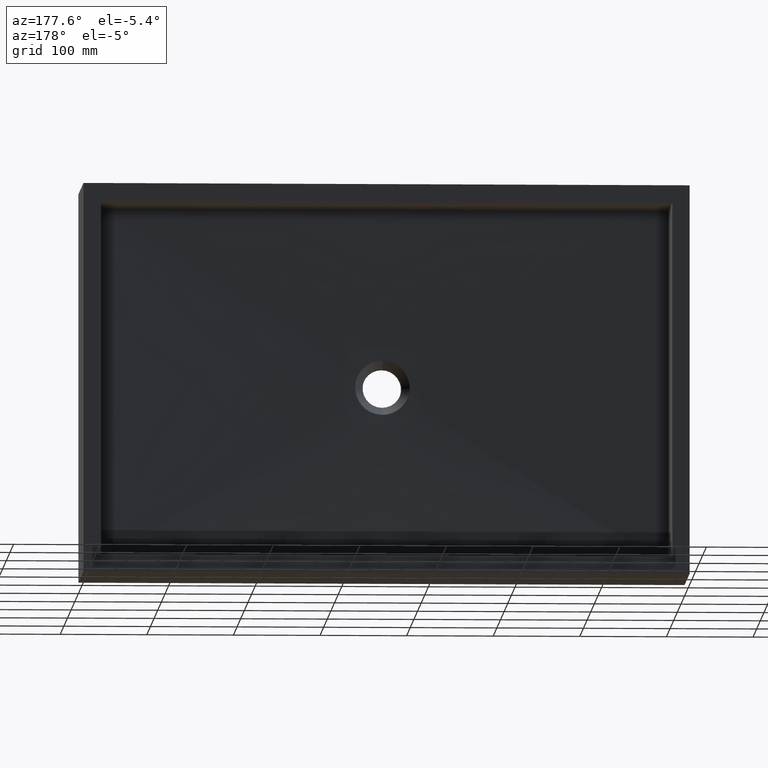
[diagram: clean part render]
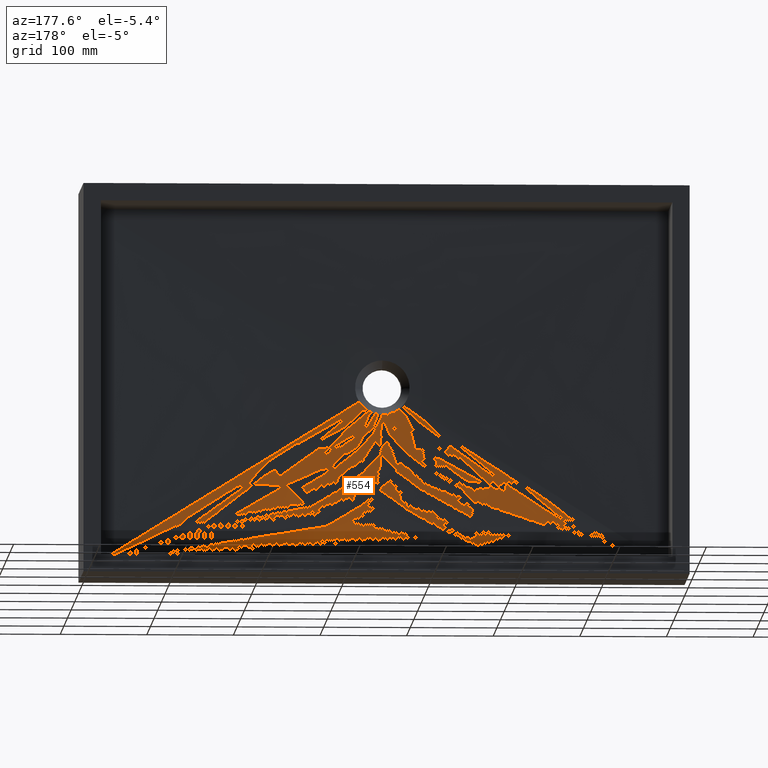
[diagram: same view with one face highlighted and labeled with its STEP entity id]
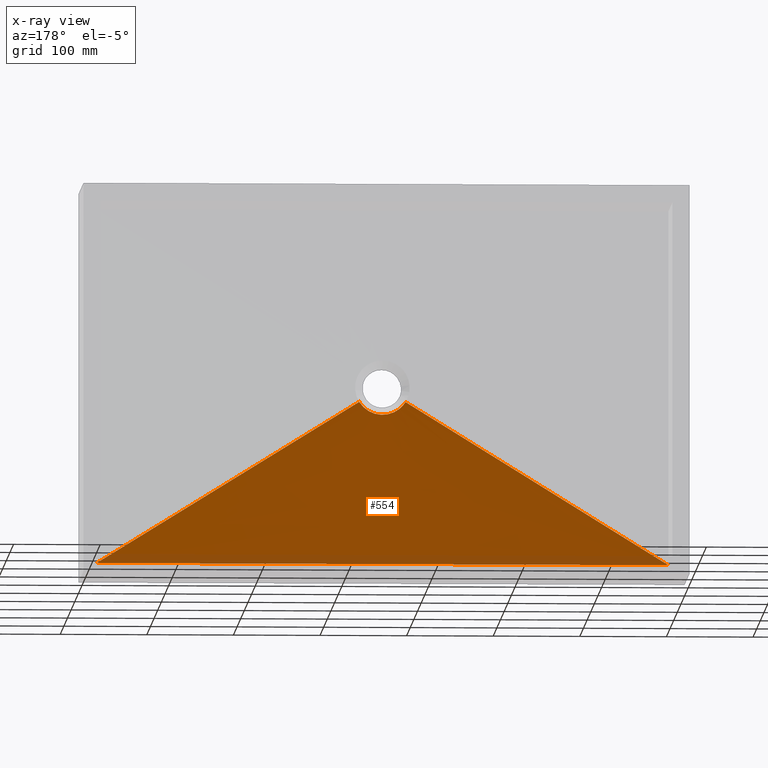
[diagram: x-ray of the same camera — body ghosted, the highlighted face saturated]
A machine part, auxiliary view. The second image highlights one B-rep face of the part: STEP entity #554.
The next image is the same camera in x-ray: the body ghosted, the highlighted face saturated — about 10% of this face is hidden behind the body in this view.
In plain terms, the highlighted face is a freeform B-spline surface patch.
Its self-contained STEP definition (entity closure, byte-faithful):
#25 = CARTESIAN_POINT ( 'NONE',  ( 352.9191022656741000, 24.99999999999999300, -256.3980699269394000 ) ) ;
#31 = LINE ( 'NONE', #980, #95 ) ;
#41 = VERTEX_POINT ( 'NONE', #215 ) ;
#51 = VERTEX_POINT ( 'NONE', #284 ) ;
#63 = CARTESIAN_POINT ( 'NONE',  ( 332.5811913703494200, 25.00000000000000400, -251.2806156858036100 ) ) ;
#80 = CARTESIAN_POINT ( 'NONE',  ( 325.8697062781249100, 25.00000000000000400, -245.4000647733058100 ) ) ;
#95 = VECTOR ( 'NONE', #794, 1000.000000000000200 ) ;
#112 = CARTESIAN_POINT ( 'NONE',  ( 365.0979135782726500, 24.99999999999999300, -252.6792098963159400 ) ) ;
#119 = VERTEX_POINT ( 'NONE', #662 ) ;
#128 = ORIENTED_EDGE ( 'NONE', *, *, #987, .T. ) ;
#157 = CARTESIAN_POINT ( 'NONE',  ( 376.7573994075996200, 25.00000000000000000, -241.6220208441149300 ) ) ;
#184 = CARTESIAN_POINT ( 'NONE',  ( 75.00000000000031300, 30.00000000000001100, -430.0000000000000600 ) ) ;
#199 = CARTESIAN_POINT ( 'NONE',  ( 336.1288606015342600, 24.99999999999999600, -253.3160387345190300 ) ) ;
#215 = CARTESIAN_POINT ( 'NONE',  ( 20.00000000000001800, 30.00000000000000400, -430.0000000000000000 ) ) ;
#217 = ORIENTED_EDGE ( 'NONE', *, *, #521, .T. ) ;
#247 = VECTOR ( 'NONE', #849, 1000.000000000000000 ) ;
#265 = CARTESIAN_POINT ( 'NONE',  ( 325.8697062781249100, 25.00000000000000400, -245.4000647733058100 ) ) ;
#276 = CARTESIAN_POINT ( 'NONE',  ( 212.5000000000007700, 30.00000000000000000, -430.0000000000001100 ) ) ;
#284 = CARTESIAN_POINT ( 'NONE',  ( 679.9999999999998900, 30.00000000000000400, -429.9999999999998900 ) ) ;
#295 = CARTESIAN_POINT ( 'NONE',  ( 338.6932773810410100, 25.00000000000000000, -254.4340717782024200 ) ) ;
#344 = B_SPLINE_SURFACE_WITH_KNOTS ( 'NONE', 3, 1, ( 
 ( #689, #747 ),
 ( #754, #748 ),
 ( #742, #812 ),
 ( #718, #749 ),
 ( #784, #772 ),
 ( #798, #788 ),
 ( #821, #909 ),
 ( #911, #1028 ),
 ( #832, #820 ),
 ( #933, #891 ),
 ( #750, #830 ),
 ( #1065, #1074 ),
 ( #799, #884 ),
 ( #921, #928 ),
 ( #1069, #1079 ),
 ( #651, #1025 ),
 ( #1014, #756 ),
 ( #601, #797 ),
 ( #1010, #1003 ),
 ( #1125, #1035 ),
 ( #1090, #1108 ),
 ( #199, #276 ),
 ( #553, #606 ),
 ( #673, #815 ),
 ( #949, #1037 ),
 ( #926, #703 ),
 ( #540, #476 ),
 ( #265, #184 ),
 ( #1095, #1072 ),
 ( #1071, #1067 ) ),
 .UNSPECIFIED., .F., .F., .F.,
 ( 4, 2, 2, 2, 2, 2, 2, 2, 2, 2, 2, 2, 2, 2, 4 ),
 ( 2, 2 ),
 ( 0.0000000000000000000, 0.1250000000000000000, 0.1875000000000000000, 0.2500000000000000000, 0.3125000000000000000, 0.3750000000000000000, 0.4375000000000000000, 0.5000000000000000000, 0.5625000000000000000, 0.6250000000000000000, 0.6875000000000000000, 0.7500000000000000000, 0.8125000000000000000, 0.8750000000000000000, 1.000000000000000000 ),
 ( 0.0000000000000000000, 1.000000000000000000 ),
 .UNSPECIFIED. ) ;
#358 = CARTESIAN_POINT ( 'NONE',  ( 528.3786997037998400, 27.50000000000000400, -335.8110104220573900 ) ) ;
#375 = CARTESIAN_POINT ( 'NONE',  ( 328.4945856530685500, 25.00000000000000000, -248.0502295700401600 ) ) ;
#384 = EDGE_LOOP ( 'NONE', ( #128, #217, #397, #846 ) ) ;
#397 = ORIENTED_EDGE ( 'NONE', *, *, #1047, .T. ) ;
#409 = LINE ( 'NONE', #680, #551 ) ;
#422 = CARTESIAN_POINT ( 'NONE',  ( 342.7861324856809200, 25.00000000000000400, -255.6962619515335000 ) ) ;
#469 = VERTEX_POINT ( 'NONE', #157 ) ;
#476 = CARTESIAN_POINT ( 'NONE',  ( 116.2500000000005000, 30.00000000000001100, -430.0000000000000600 ) ) ;
#521 = EDGE_CURVE ( 'NONE', #119, #41, #31, .T. ) ;
#526 = CARTESIAN_POINT ( 'NONE',  ( 368.5129350790385300, 24.99999999999999300, -250.5189583119804100 ) ) ;
#540 = CARTESIAN_POINT ( 'NONE',  ( 328.4945856530685500, 25.00000000000000000, -248.0502295700401600 ) ) ;
#543 = LINE ( 'NONE', #358, #247 ) ;
#551 = VECTOR ( 'NONE', #1122, 1000.000000000000000 ) ;
#553 = CARTESIAN_POINT ( 'NONE',  ( 334.9020864217273500, 24.99999999999999600, -252.6792098963158800 ) ) ;
#554 = ADVANCED_FACE ( 'NONE', ( #720 ), #344, .T. ) ;
#601 = CARTESIAN_POINT ( 'NONE',  ( 344.2036955465533200, 24.99999999999999300, -255.9961740841896200 ) ) ;
#606 = CARTESIAN_POINT ( 'NONE',  ( 198.7500000000007700, 30.00000000000000400, -430.0000000000001100 ) ) ;
#644 = CARTESIAN_POINT ( 'NONE',  ( 367.4188086296506400, 25.00000000000000400, -251.2806156858035500 ) ) ;
#651 = CARTESIAN_POINT ( 'NONE',  ( 348.5404151319313500, 24.99999999999999300, -256.5000000000000000 ) ) ;
#659 = CARTESIAN_POINT ( 'NONE',  ( 370.5562178726419800, 24.99999999999999300, -248.9037215793223900 ) ) ;
#661 = CARTESIAN_POINT ( 'NONE',  ( 334.9020864217273500, 24.99999999999999600, -252.6792098963158800 ) ) ;
#662 = CARTESIAN_POINT ( 'NONE',  ( 323.2426005924004400, 25.00000000000000000, -241.6220208441149300 ) ) ;
#668 = CARTESIAN_POINT ( 'NONE',  ( 374.1302937218753800, 24.99999999999999600, -245.4000647733057600 ) ) ;
#671 = CARTESIAN_POINT ( 'NONE',  ( 336.1288606015342600, 24.99999999999999600, -253.3160387345190300 ) ) ;
#673 = CARTESIAN_POINT ( 'NONE',  ( 332.5811913703494200, 25.00000000000000400, -251.2806156858036100 ) ) ;
#680 = CARTESIAN_POINT ( 'NONE',  ( 350.0000000000008500, 30.00000000000000000, -429.9999999999999400 ) ) ;
#689 = CARTESIAN_POINT ( 'NONE',  ( 376.7573994075996200, 25.00000000000000000, -241.6220208441149300 ) ) ;
#703 = CARTESIAN_POINT ( 'NONE',  ( 130.0000000000005400, 30.00000000000000700, -430.0000000000000600 ) ) ;
#718 = CARTESIAN_POINT ( 'NONE',  ( 371.5054143469316700, 25.00000000000000400, -248.0502295700401900 ) ) ;
#720 = FACE_OUTER_BOUND ( 'NONE', #384, .T. ) ;
#742 = CARTESIAN_POINT ( 'NONE',  ( 374.1302937218753800, 24.99999999999999600, -245.4000647733057600 ) ) ;
#744 = CARTESIAN_POINT ( 'NONE',  ( 347.0808977343260700, 25.00000000000000000, -256.3980699269394000 ) ) ;
#747 = CARTESIAN_POINT ( 'NONE',  ( 679.9999999999998900, 30.00000000000000400, -430.0000000000000000 ) ) ;
#748 = CARTESIAN_POINT ( 'NONE',  ( 652.5000000000001100, 30.00000000000000400, -430.0000000000000000 ) ) ;
#749 = CARTESIAN_POINT ( 'NONE',  ( 583.7500000000004500, 30.00000000000000400, -429.9999999999999400 ) ) ;
#750 = CARTESIAN_POINT ( 'NONE',  ( 359.9691197937191300, 25.00000000000000400, -254.9151639281784300 ) ) ;
#754 = CARTESIAN_POINT ( 'NONE',  ( 375.5807802258868300, 25.00000000000000000, -243.5160907463842600 ) ) ;
#756 = CARTESIAN_POINT ( 'NONE',  ( 322.5000000000008500, 30.00000000000000000, -429.9999999999999400 ) ) ;
#772 = CARTESIAN_POINT ( 'NONE',  ( 570.0000000000004500, 30.00000000000000000, -429.9999999999999400 ) ) ;
#784 = CARTESIAN_POINT ( 'NONE',  ( 370.5562178726419800, 24.99999999999999300, -248.9037215793223900 ) ) ;
#788 = CARTESIAN_POINT ( 'NONE',  ( 542.5000000000006800, 30.00000000000000000, -430.0000000000000000 ) ) ;
#794 = DIRECTION ( 'NONE',  ( -0.8493579470568618500, 0.01400459476006333600, -0.5276314519595655100 ) ) ;
#797 = CARTESIAN_POINT ( 'NONE',  ( 295.0000000000008000, 30.00000000000000000, -429.9999999999999400 ) ) ;
#798 = CARTESIAN_POINT ( 'NONE',  ( 368.5129350790385300, 24.99999999999999300, -250.5189583119804100 ) ) ;
#799 = CARTESIAN_POINT ( 'NONE',  ( 355.7963044534468500, 25.00000000000000000, -255.9961740841897300 ) ) ;
#812 = CARTESIAN_POINT ( 'NONE',  ( 625.0000000000002300, 30.00000000000000400, -430.0000000000000000 ) ) ;
#815 = CARTESIAN_POINT ( 'NONE',  ( 171.2500000000006800, 30.00000000000000700, -430.0000000000001100 ) ) ;
#820 = CARTESIAN_POINT ( 'NONE',  ( 487.5000000000008000, 30.00000000000000000, -430.0000000000000000 ) ) ;
#821 = CARTESIAN_POINT ( 'NONE',  ( 367.4188086296506400, 25.00000000000000400, -251.2806156858035500 ) ) ;
#830 = CARTESIAN_POINT ( 'NONE',  ( 446.2500000000008500, 30.00000000000000000, -430.0000000000000000 ) ) ;
#832 = CARTESIAN_POINT ( 'NONE',  ( 363.8711393984657400, 25.00000000000000000, -253.3160387345189700 ) ) ;
#839 = B_SPLINE_CURVE_WITH_KNOTS ( 'NONE', 3,
 ( #875, #897, #668, #842, #659, #526, #644, #112, #1068, #1105, #979, #950, #984, #25, #885, #999, #744, #970, #422, #1078, #295, #671, #661, #63, #1084, #1087, #375, #80, #1176, #1169 ),
 .UNSPECIFIED., .F., .F.,
 ( 4, 2, 2, 2, 2, 2, 2, 2, 2, 2, 2, 2, 2, 2, 4 ),
 ( 0.0000000000000000000, 0.1250000000000000000, 0.1875000000000000000, 0.2500000000000000000, 0.3125000000000000000, 0.3750000000000000000, 0.4375000000000000000, 0.5000000000000000000, 0.5625000000000000000, 0.6250000000000000000, 0.6875000000000000000, 0.7500000000000000000, 0.8125000000000000000, 0.8750000000000000000, 1.000000000000000000 ),
 .UNSPECIFIED. ) ;
#842 = CARTESIAN_POINT ( 'NONE',  ( 371.5054143469316700, 25.00000000000000400, -248.0502295700401900 ) ) ;
#846 = ORIENTED_EDGE ( 'NONE', *, *, #1043, .F. ) ;
#849 = DIRECTION ( 'NONE',  ( 0.8493579470568619600, 0.01400459476006334300, -0.5276314519595655100 ) ) ;
#875 = CARTESIAN_POINT ( 'NONE',  ( 376.7573994075996200, 25.00000000000000000, -241.6220208441149300 ) ) ;
#884 = CARTESIAN_POINT ( 'NONE',  ( 405.0000000000008500, 30.00000000000000000, -429.9999999999999400 ) ) ;
#885 = CARTESIAN_POINT ( 'NONE',  ( 351.4595848680684800, 25.00000000000000000, -256.5000000000000000 ) ) ;
#891 = CARTESIAN_POINT ( 'NONE',  ( 460.0000000000008500, 30.00000000000000000, -429.9999999999999400 ) ) ;
#897 = CARTESIAN_POINT ( 'NONE',  ( 375.5807802258868300, 25.00000000000000000, -243.5160907463842600 ) ) ;
#909 = CARTESIAN_POINT ( 'NONE',  ( 528.7500000000006800, 30.00000000000000000, -430.0000000000000600 ) ) ;
#911 = CARTESIAN_POINT ( 'NONE',  ( 365.0979135782726500, 24.99999999999999300, -252.6792098963159400 ) ) ;
#921 = CARTESIAN_POINT ( 'NONE',  ( 352.9191022656741000, 24.99999999999999300, -256.3980699269394000 ) ) ;
#926 = CARTESIAN_POINT ( 'NONE',  ( 329.4437821273579600, 24.99999999999999300, -248.9037215793223900 ) ) ;
#928 = CARTESIAN_POINT ( 'NONE',  ( 377.5000000000009100, 30.00000000000000000, -429.9999999999999400 ) ) ;
#933 = CARTESIAN_POINT ( 'NONE',  ( 361.3067226189591000, 25.00000000000000400, -254.4340717782024800 ) ) ;
#949 = CARTESIAN_POINT ( 'NONE',  ( 331.4870649209613600, 24.99999999999998900, -250.5189583119804400 ) ) ;
#950 = CARTESIAN_POINT ( 'NONE',  ( 357.2138675143191900, 24.99999999999999600, -255.6962619515334400 ) ) ;
#970 = CARTESIAN_POINT ( 'NONE',  ( 344.2036955465533200, 24.99999999999999300, -255.9961740841896200 ) ) ;
#979 = CARTESIAN_POINT ( 'NONE',  ( 359.9691197937191300, 25.00000000000000400, -254.9151639281784300 ) ) ;
#980 = CARTESIAN_POINT ( 'NONE',  ( 171.6213002962002500, 27.50000000000000400, -335.8110104220574500 ) ) ;
#984 = CARTESIAN_POINT ( 'NONE',  ( 355.7963044534468500, 25.00000000000000000, -255.9961740841897300 ) ) ;
#987 = EDGE_CURVE ( 'NONE', #469, #119, #839, .T. ) ;
#999 = CARTESIAN_POINT ( 'NONE',  ( 348.5404151319313500, 24.99999999999999300, -256.5000000000000000 ) ) ;
#1003 = CARTESIAN_POINT ( 'NONE',  ( 281.2500000000008500, 30.00000000000000000, -430.0000000000000000 ) ) ;
#1010 = CARTESIAN_POINT ( 'NONE',  ( 342.7861324856809200, 25.00000000000000400, -255.6962619515335000 ) ) ;
#1014 = CARTESIAN_POINT ( 'NONE',  ( 347.0808977343260700, 25.00000000000000000, -256.3980699269394000 ) ) ;
#1025 = CARTESIAN_POINT ( 'NONE',  ( 336.2500000000009100, 30.00000000000000000, -429.9999999999999400 ) ) ;
#1028 = CARTESIAN_POINT ( 'NONE',  ( 501.2500000000007400, 30.00000000000000000, -430.0000000000000000 ) ) ;
#1035 = CARTESIAN_POINT ( 'NONE',  ( 253.7500000000008000, 30.00000000000000000, -430.0000000000000600 ) ) ;
#1037 = CARTESIAN_POINT ( 'NONE',  ( 157.5000000000006300, 30.00000000000000700, -430.0000000000001100 ) ) ;
#1043 = EDGE_CURVE ( 'NONE', #469, #51, #543, .T. ) ;
#1047 = EDGE_CURVE ( 'NONE', #41, #51, #409, .T. ) ;
#1065 = CARTESIAN_POINT ( 'NONE',  ( 357.2138675143191900, 24.99999999999999600, -255.6962619515334400 ) ) ;
#1067 = CARTESIAN_POINT ( 'NONE',  ( 20.00000000000001800, 30.00000000000000400, -430.0000000000000000 ) ) ;
#1068 = CARTESIAN_POINT ( 'NONE',  ( 363.8711393984657400, 25.00000000000000000, -253.3160387345189700 ) ) ;
#1069 = CARTESIAN_POINT ( 'NONE',  ( 351.4595848680684800, 25.00000000000000000, -256.5000000000000000 ) ) ;
#1071 = CARTESIAN_POINT ( 'NONE',  ( 323.2426005924004400, 25.00000000000000000, -241.6220208441149300 ) ) ;
#1072 = CARTESIAN_POINT ( 'NONE',  ( 47.50000000000017800, 30.00000000000000700, -430.0000000000000600 ) ) ;
#1074 = CARTESIAN_POINT ( 'NONE',  ( 418.7500000000008500, 30.00000000000000000, -429.9999999999999400 ) ) ;
#1078 = CARTESIAN_POINT ( 'NONE',  ( 340.0308802062808100, 25.00000000000000400, -254.9151639281783200 ) ) ;
#1079 = CARTESIAN_POINT ( 'NONE',  ( 363.7500000000009100, 30.00000000000000000, -429.9999999999998900 ) ) ;
#1084 = CARTESIAN_POINT ( 'NONE',  ( 331.4870649209613600, 24.99999999999998900, -250.5189583119804400 ) ) ;
#1087 = CARTESIAN_POINT ( 'NONE',  ( 329.4437821273579600, 24.99999999999999300, -248.9037215793223900 ) ) ;
#1090 = CARTESIAN_POINT ( 'NONE',  ( 338.6932773810410100, 25.00000000000000000, -254.4340717782024200 ) ) ;
#1095 = CARTESIAN_POINT ( 'NONE',  ( 324.4192197741132300, 25.00000000000000000, -243.5160907463842400 ) ) ;
#1105 = CARTESIAN_POINT ( 'NONE',  ( 361.3067226189591000, 25.00000000000000400, -254.4340717782024800 ) ) ;
#1108 = CARTESIAN_POINT ( 'NONE',  ( 240.0000000000008200, 30.00000000000000000, -430.0000000000000600 ) ) ;
#1122 = DIRECTION ( 'NONE',  ( 1.000000000000000000, -0.0000000000000000000, -0.0000000000000000000 ) ) ;
#1125 = CARTESIAN_POINT ( 'NONE',  ( 340.0308802062808100, 25.00000000000000400, -254.9151639281783200 ) ) ;
#1169 = CARTESIAN_POINT ( 'NONE',  ( 323.2426005924004400, 25.00000000000000000, -241.6220208441149300 ) ) ;
#1176 = CARTESIAN_POINT ( 'NONE',  ( 324.4192197741132300, 25.00000000000000000, -243.5160907463842400 ) ) ;